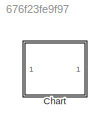
MODEL slx_676f23fe9f97
KIND model
CONFIG AbsTol = auto
CONFIG EnableMultiTasking = off
CONFIG FixedStep = auto
CONFIG MaxStep = auto
CONFIG MinStep = auto
CONFIG RelTol = 1e-3
CONFIG SampleTimeConstraint = Unconstrained
CONFIG SolverName = VariableStepAuto
CONFIG StartTime = 0.0
CONFIG StopTime = 10.0
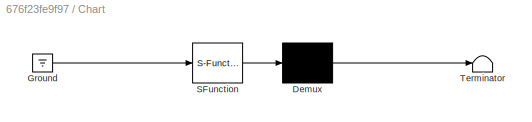
BLOCK [SubSystem] Chart
  ErrorFcn = Stateflow.Translate.translate
  PermitHierarchicalResolution = ExplicitOnly
  Ports = []
  RequestExecContextInheritance = off
  SFBlockType = Chart
  TreatAsAtomicUnit = on
BLOCK [Demux] Chart/ Demux 
  Outputs = 1
  Ports = [1, 1]
BLOCK [Ground] Chart/ Ground 
BLOCK [S-Function] Chart/ SFunction 
  EnableBusSupport = on
  FunctionName = sf_sfun
  PortCounts = [1 1]
  Ports = [1, 1]
  SFcnIsStateOwnerBlock = off
  SFunctionDeploymentMode = off
  Tag = Stateflow S-Function 3
BLOCK [Terminator] Chart/ Terminator 
CHART Chart states=9 transitions=6
  STATE_LABEL 'Stop\ny1=Red;\ny2=Green;'
  STATE_LABEL 'SopForTraffic\ny1=Red;\ny2=Green;'
  STATE_LABEL 'StopToGo\ny1=Red;\ny2=Green;'
  STATE_LABEL 'after(20,tick)'
  STATE_LABEL '[sens]'
  STATE_LABEL 'after(3,tick)'
  STATE_LABEL 'GoToStop\ny1=Yellow;\ny2=Red;'
  STATE_LABEL 'Go\ny1=Green;\ny2=Red;'
  STATE_LABEL 'after(10,tick)'
CHART  states=0 transitions=0
